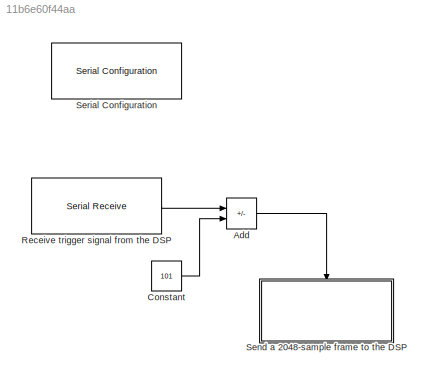
MODEL slx_11b6e60f44aa
KIND model
CONFIG AbsTol = auto
CONFIG EnableMultiTasking = off
CONFIG FixedStep = auto
CONFIG MaxStep = auto
CONFIG MinStep = auto
CONFIG RelTol = 1e-3
CONFIG SampleTimeConstraint = Unconstrained
CONFIG SolverName = VariableStepAuto
CONFIG StartTime = 0.0
CONFIG StopTime = inf
BLOCK [Sum] Add
  IconShape = rectangular
  Inputs = +-
  Ports = [2, 1]
BLOCK [Constant] Constant
  Value = 101
BLOCK [Reference] Receive trigger signal from the DSP  REF=instrumentlib/Serial Receive
  Ports = [0, 1]
  SourceBlock = instrumentlib/Serial Receive
  SourceProductBaseCode = IC
  SourceType = Serial Receive
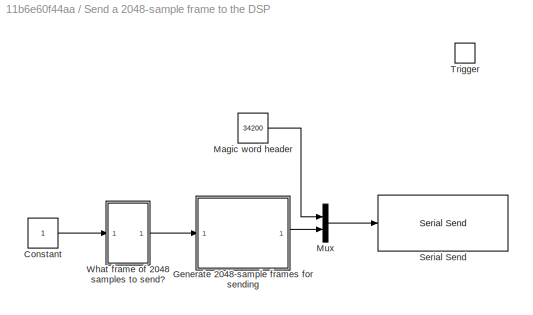
BLOCK [SubSystem] Send a 2048-sample frame to the DSP
  Ports = [0, 0, 0, 1]
  RequestExecContextInheritance = off
BLOCK [Constant] Send a 2048-sample frame to the DSP/Constant
  SampleTime = -1
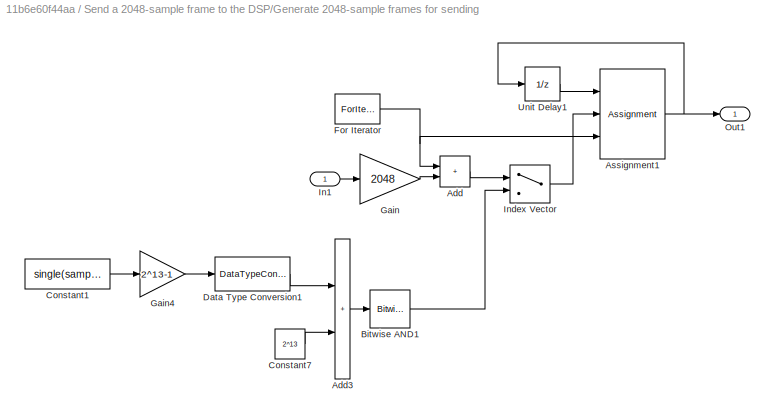
BLOCK [SubSystem] Send a 2048-sample frame to the DSP/Generate 2048-sample frames for sending
  Ports = [1, 1]
  RequestExecContextInheritance = off
  TreatAsAtomicUnit = on
BLOCK [Sum] Send a 2048-sample frame to the DSP/Generate 2048-sample frames for sending/Add
  IconShape = rectangular
  Ports = [2, 1]
BLOCK [Sum] Send a 2048-sample frame to the DSP/Generate 2048-sample frames for sending/Add3
  IconShape = rectangular
  Ports = [2, 1]
BLOCK [Assignment] Send a 2048-sample frame to the DSP/Generate 2048-sample frames for sending/Assignment1
  DiagnosticForDimensions = Warning
  IndexOptions = Index vector (port)
  Indices = 1
  OutputSizes = 1
  Ports = [3, 1]
BLOCK [Reference] Send a 2048-sample frame to the DSP/Generate 2048-sample frames for sending/Bitwise AND1  REF=simulink/Logic and Bit
Operations/Bitwise
Operator
  Ports = [1, 1]
  SourceBlock = simulink/Logic and Bit\nOperations/Bitwise\nOperator
  SourceProductBaseCode = SL
  SourceType = Bitwise Operator
BLOCK [Constant] Send a 2048-sample frame to the DSP/Generate 2048-sample frames for sending/Constant1
  OutDataTypeStr = single
  Value = single(samples)
BLOCK [Constant] Send a 2048-sample frame to the DSP/Generate 2048-sample frames for sending/Constant7
  OutDataTypeStr = uint16
  Value = 2^13
BLOCK [DataTypeConversion] Send a 2048-sample frame to the DSP/Generate 2048-sample frames for sending/Data Type Conversion1
  OutDataTypeStr = uint16
  RndMeth = Floor
  SaturateOnIntegerOverflow = off
BLOCK [ForIterator] Send a 2048-sample frame to the DSP/Generate 2048-sample frames for sending/For Iterator
  IterationLimit = 2048
  Ports = [0, 1]
  ResetStates = reset
BLOCK [Gain] Send a 2048-sample frame to the DSP/Generate 2048-sample frames for sending/Gain
  Gain = 2048
BLOCK [Gain] Send a 2048-sample frame to the DSP/Generate 2048-sample frames for sending/Gain4
  Gain = 2^13-1
BLOCK [Inport] Send a 2048-sample frame to the DSP/Generate 2048-sample frames for sending/In1
BLOCK [MultiPortSwitch] Send a 2048-sample frame to the DSP/Generate 2048-sample frames for sending/Index Vector
  DataPortOrder = Zero-based contiguous
  InputSameDT = off
  Inputs = 1
  Ports = [2, 1]
  SaturateOnIntegerOverflow = off
  zeroidx = on
BLOCK [Outport] Send a 2048-sample frame to the DSP/Generate 2048-sample frames for sending/Out1
BLOCK [UnitDelay] Send a 2048-sample frame to the DSP/Generate 2048-sample frames for sending/Unit Delay1
  HasFrameUpgradeWarning = on
  InitialCondition = zeros(1,2048)
  SampleTime = -1
BLOCK [Constant] Send a 2048-sample frame to the DSP/Magic word header
  OutDataTypeStr = uint16
  SampleTime = -1
  Value = 34200
BLOCK [Mux] Send a 2048-sample frame to the DSP/Mux
  DisplayOption = bar
  Inputs = 2
  Ports = [2, 1]
BLOCK [Reference] Send a 2048-sample frame to the DSP/Serial Send  REF=instrumentlib/Serial Send
  Ports = [1]
  SourceBlock = instrumentlib/Serial Send
  SourceProductBaseCode = IC
  SourceType = Serial Send
BLOCK [TriggerPort] Send a 2048-sample frame to the DSP/Trigger
  PortDimensions = 1
  Ports = []
  StatesWhenEnabling = held
  TriggerType = either
  VariantControl = Variant
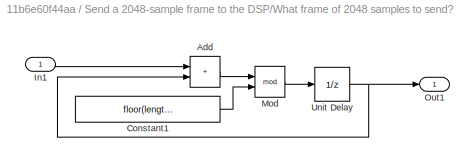
BLOCK [SubSystem] Send a 2048-sample frame to the DSP/What frame of 2048 samples to send?
  Ports = [1, 1]
  RequestExecContextInheritance = off
BLOCK [Sum] Send a 2048-sample frame to the DSP/What frame of 2048 samples to send?/Add
  IconShape = rectangular
  Ports = [2, 1]
BLOCK [Constant] Send a 2048-sample frame to the DSP/What frame of 2048 samples to send?/Constant1
  Value = floor(length(samples)/2048)-1
BLOCK [Inport] Send a 2048-sample frame to the DSP/What frame of 2048 samples to send?/In1
BLOCK [Math] Send a 2048-sample frame to the DSP/What frame of 2048 samples to send?/Mod
  Operator = mod
  Ports = [2, 1]
BLOCK [Outport] Send a 2048-sample frame to the DSP/What frame of 2048 samples to send?/Out1
BLOCK [UnitDelay] Send a 2048-sample frame to the DSP/What frame of 2048 samples to send?/Unit Delay
  HasFrameUpgradeWarning = on
  SampleTime = -1
BLOCK [Reference] Serial Configuration  REF=instrumentlib/Serial Configuration
  Ports = []
  Priority = -200000
  SourceBlock = instrumentlib/Serial Configuration
  SourceProductBaseCode = IC
  SourceType = Serial Configuration
LINE Add:1 -> Send a 2048-sample frame to the DSP:trigger
LINE Constant:1 -> Add:2
LINE Receive trigger signal from the DSP:1 -> Add:1
LINE Send a 2048-sample frame to the DSP/Constant:1 -> Send a 2048-sample frame to the DSP/What frame of 2048 samples to send?:1
LINE Send a 2048-sample frame to the DSP/Generate 2048-sample frames for sending/Add3:1 -> Send a 2048-sample frame to the DSP/Generate 2048-sample frames for sending/Bitwise AND1:1
LINE Send a 2048-sample frame to the DSP/Generate 2048-sample frames for sending/Add:1 -> Send a 2048-sample frame to the DSP/Generate 2048-sample frames for sending/Index Vector:1
NET Send a 2048-sample frame to the DSP/Generate 2048-sample frames for sending/Assignment1:1 -> Send a 2048-sample frame to the DSP/Generate 2048-sample frames for sending/Out1:1, Send a 2048-sample frame to the DSP/Generate 2048-sample frames for sending/Unit Delay1:1
LINE Send a 2048-sample frame to the DSP/Generate 2048-sample frames for sending/Bitwise AND1:1 -> Send a 2048-sample frame to the DSP/Generate 2048-sample frames for sending/Index Vector:2
LINE Send a 2048-sample frame to the DSP/Generate 2048-sample frames for sending/Constant1:1 -> Send a 2048-sample frame to the DSP/Generate 2048-sample frames for sending/Gain4:1
LINE Send a 2048-sample frame to the DSP/Generate 2048-sample frames for sending/Constant7:1 -> Send a 2048-sample frame to the DSP/Generate 2048-sample frames for sending/Add3:2
LINE Send a 2048-sample frame to the DSP/Generate 2048-sample frames for sending/Data Type Conversion1:1 -> Send a 2048-sample frame to the DSP/Generate 2048-sample frames for sending/Add3:1
NET Send a 2048-sample frame to the DSP/Generate 2048-sample frames for sending/For Iterator:1 -> Send a 2048-sample frame to the DSP/Generate 2048-sample frames for sending/Add:1, Send a 2048-sample frame to the DSP/Generate 2048-sample frames for sending/Assignment1:3
LINE Send a 2048-sample frame to the DSP/Generate 2048-sample frames for sending/Gain4:1 -> Send a 2048-sample frame to the DSP/Generate 2048-sample frames for sending/Data Type Conversion1:1
LINE Send a 2048-sample frame to the DSP/Generate 2048-sample frames for sending/Gain:1 -> Send a 2048-sample frame to the DSP/Generate 2048-sample frames for sending/Add:2
LINE Send a 2048-sample frame to the DSP/Generate 2048-sample frames for sending/In1:1 -> Send a 2048-sample frame to the DSP/Generate 2048-sample frames for sending/Gain:1
LINE Send a 2048-sample frame to the DSP/Generate 2048-sample frames for sending/Index Vector:1 -> Send a 2048-sample frame to the DSP/Generate 2048-sample frames for sending/Assignment1:2
LINE Send a 2048-sample frame to the DSP/Generate 2048-sample frames for sending/Unit Delay1:1 -> Send a 2048-sample frame to the DSP/Generate 2048-sample frames for sending/Assignment1:1
LINE Send a 2048-sample frame to the DSP/Generate 2048-sample frames for sending:1 -> Send a 2048-sample frame to the DSP/Mux:2
LINE Send a 2048-sample frame to the DSP/Magic word header:1 -> Send a 2048-sample frame to the DSP/Mux:1
LINE Send a 2048-sample frame to the DSP/Mux:1 -> Send a 2048-sample frame to the DSP/Serial Send:1
LINE Send a 2048-sample frame to the DSP/What frame of 2048 samples to send?/Add:1 -> Send a 2048-sample frame to the DSP/What frame of 2048 samples to send?/Mod:1
LINE Send a 2048-sample frame to the DSP/What frame of 2048 samples to send?/Constant1:1 -> Send a 2048-sample frame to the DSP/What frame of 2048 samples to send?/Mod:2
LINE Send a 2048-sample frame to the DSP/What frame of 2048 samples to send?/In1:1 -> Send a 2048-sample frame to the DSP/What frame of 2048 samples to send?/Add:1
LINE Send a 2048-sample frame to the DSP/What frame of 2048 samples to send?/Mod:1 -> Send a 2048-sample frame to the DSP/What frame of 2048 samples to send?/Unit Delay:1
NET Send a 2048-sample frame to the DSP/What frame of 2048 samples to send?/Unit Delay:1 -> Send a 2048-sample frame to the DSP/What frame of 2048 samples to send?/Add:2, Send a 2048-sample frame to the DSP/What frame of 2048 samples to send?/Out1:1
LINE Send a 2048-sample frame to the DSP/What frame of 2048 samples to send?:1 -> Send a 2048-sample frame to the DSP/Generate 2048-sample frames for sending:1
note: NET lines group one-source signal fan-out (src -> all destinations, sorted); 1:1 wires keep LINE
